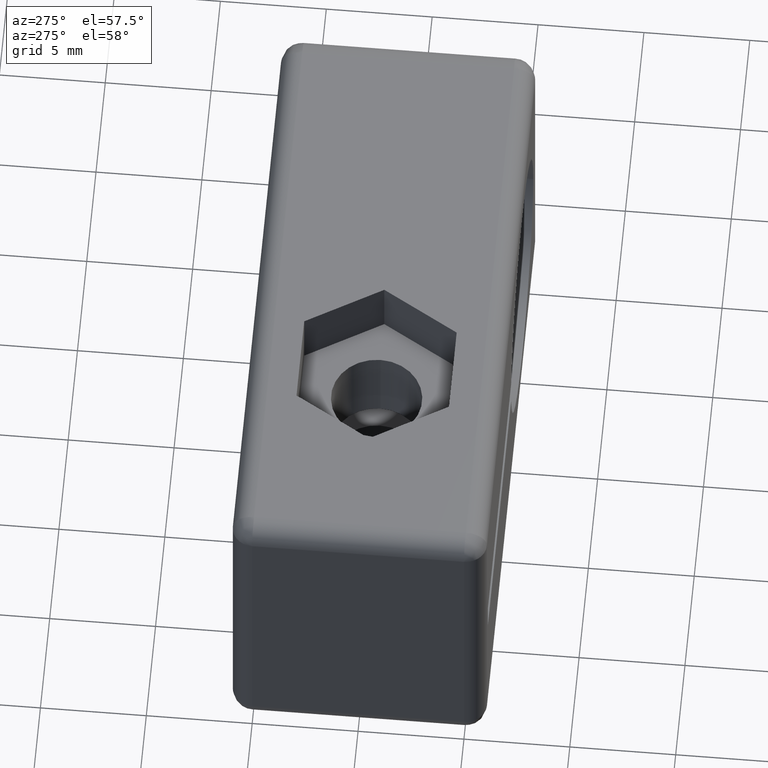
[diagram: clean part render]
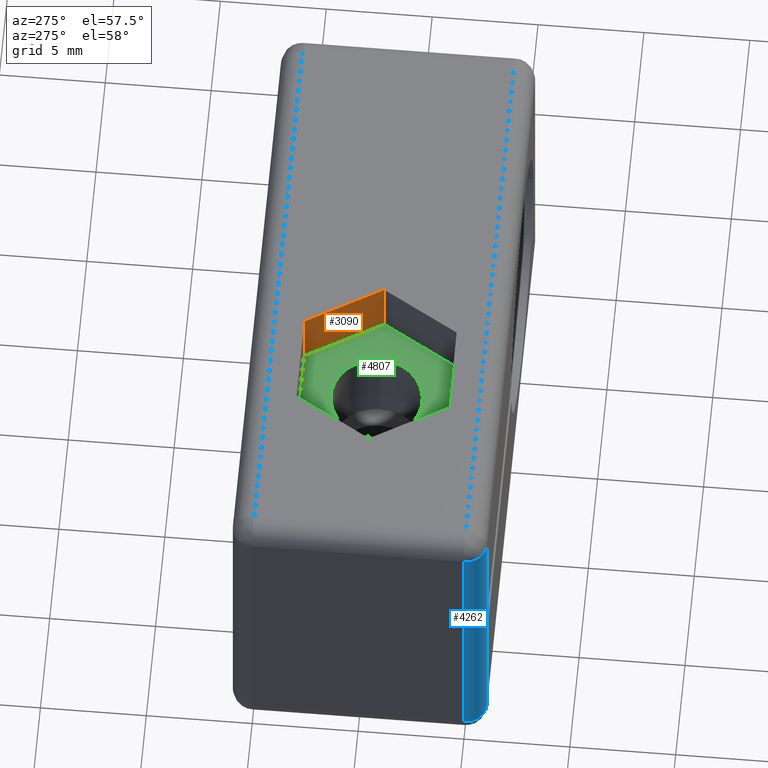
[diagram: same view with three faces highlighted in distinct colors, each labeled with its STEP entity id]
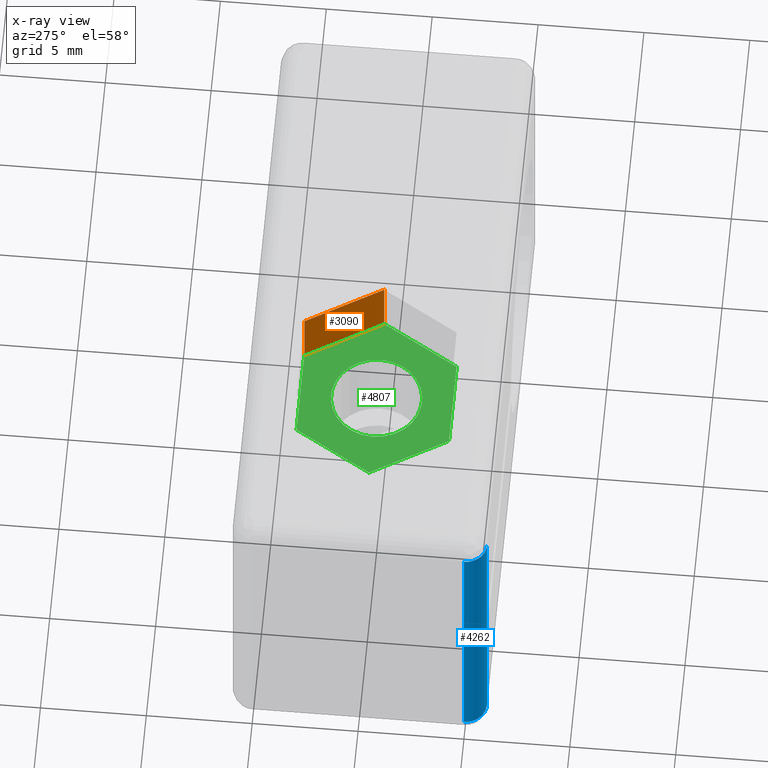
[diagram: x-ray of the same camera — body ghosted, the three highlighted faces saturated]
A machine part, auxiliary view with three faces highlighted in distinct colors.
The next image is the same camera in x-ray (body ghosted, the three faces saturated) — at least one of them is partly hidden behind the body in this view.
Their STEP definitions:

[orange] entity #3090 — the highlighted planar face has unit normal (0.866, 0.5, -0).
#489 = LINE ( 'NONE', #4588, #4095 ) ;
#601 = EDGE_LOOP ( 'NONE', ( #1267, #1251, #1333, #3761 ) ) ;
#623 = CARTESIAN_POINT ( 'NONE',  ( 2.078460969082650800, 3.600000000000001000, 13.00000000000000200 ) ) ;
#689 = VERTEX_POINT ( 'NONE', #870 ) ;
#727 = DIRECTION ( 'NONE',  ( 0.5000000000000013300, -0.8660254037844379300, 0.0000000000000000000 ) ) ;
#733 = DIRECTION ( 'NONE',  ( 0.0000000000000000000, 0.0000000000000000000, 1.000000000000000000 ) ) ;
#870 = CARTESIAN_POINT ( 'NONE',  ( 4.156921938165308600, 8.550872054697259100E-016, 16.00000000000000000 ) ) ;
#965 = VECTOR ( 'NONE', #5458, 1000.000000000000000 ) ;
#1141 = CARTESIAN_POINT ( 'NONE',  ( 4.156921938165310400, -1.002351020987810100E-017, 13.00000000000000200 ) ) ;
#1251 = ORIENTED_EDGE ( 'NONE', *, *, #5398, .T. ) ;
#1267 = ORIENTED_EDGE ( 'NONE', *, *, #4350, .F. ) ;
#1333 = ORIENTED_EDGE ( 'NONE', *, *, #2224, .T. ) ;
#1344 = CARTESIAN_POINT ( 'NONE',  ( 4.156921938165305100, 4.336808689942017700E-015, 13.00000000000000200 ) ) ;
#1378 = VECTOR ( 'NONE', #727, 1000.000000000000000 ) ;
#2025 = DIRECTION ( 'NONE',  ( -0.5000000000000003300, 0.8660254037844383700, 0.0000000000000000000 ) ) ;
#2224 = EDGE_CURVE ( 'NONE', #5410, #689, #4139, .T. ) ;
#3090 = ADVANCED_FACE ( 'NONE', ( #5341 ), #4147, .F. ) ;
#3629 = EDGE_CURVE ( 'NONE', #4847, #689, #5020, .T. ) ;
#3665 = CARTESIAN_POINT ( 'NONE',  ( 2.078460969082649900, 3.600000000000000500, 13.00000000000000200 ) ) ;
#3761 = ORIENTED_EDGE ( 'NONE', *, *, #3629, .F. ) ;
#3813 = LINE ( 'NONE', #3665, #965 ) ;
#3933 = AXIS2_PLACEMENT_3D ( 'NONE', #1141, #5041, #2025 ) ;
#4095 = VECTOR ( 'NONE', #733, 1000.000000000000000 ) ;
#4139 = LINE ( 'NONE', #1344, #4663 ) ;
#4147 = PLANE ( 'NONE',  #3933 ) ;
#4350 = EDGE_CURVE ( 'NONE', #4848, #4847, #489, .T. ) ;
#4511 = CARTESIAN_POINT ( 'NONE',  ( 2.078460969082651700, 3.600000000000001000, 16.00000000000000000 ) ) ;
#4551 = CARTESIAN_POINT ( 'NONE',  ( 4.156921938165308600, 9.162468568136809800E-016, 13.00000000000000200 ) ) ;
#4588 = CARTESIAN_POINT ( 'NONE',  ( 2.078460969082654300, 3.600000000000002300, 13.00000000000000200 ) ) ;
#4663 = VECTOR ( 'NONE', #5131, 1000.000000000000000 ) ;
#4847 = VERTEX_POINT ( 'NONE', #4511 ) ;
#4848 = VERTEX_POINT ( 'NONE', #623 ) ;
#5020 = LINE ( 'NONE', #5404, #1378 ) ;
#5041 = DIRECTION ( 'NONE',  ( 0.8660254037844384900, 0.5000000000000004400, -0.0000000000000000000 ) ) ;
#5131 = DIRECTION ( 'NONE',  ( -0.0000000000000000000, 0.0000000000000000000, 1.000000000000000000 ) ) ;
#5341 = FACE_OUTER_BOUND ( 'NONE', #601, .T. ) ;
#5398 = EDGE_CURVE ( 'NONE', #4848, #5410, #3813, .T. ) ;
#5404 = CARTESIAN_POINT ( 'NONE',  ( 2.078460969082649900, 3.600000000000000500, 16.00000000000000000 ) ) ;
#5410 = VERTEX_POINT ( 'NONE', #4551 ) ;
#5458 = DIRECTION ( 'NONE',  ( 0.5000000000000013300, -0.8660254037844379300, 0.0000000000000000000 ) ) ;

[blue] entity #4262 — the highlighted cylindrical surface (edge-blend (fillet) strip) has radius 1 mm, axis along (0, 0, 1).
#212 = EDGE_CURVE ( 'NONE', #3655, #769, #1256, .T. ) ;
#340 = VECTOR ( 'NONE', #2649, 1000.000000000000000 ) ;
#509 = ORIENTED_EDGE ( 'NONE', *, *, #3663, .F. ) ;
#670 = AXIS2_PLACEMENT_3D ( 'NONE', #5294, #4389, #3993 ) ;
#761 = EDGE_LOOP ( 'NONE', ( #509, #3779, #5161, #4410 ) ) ;
#769 = VERTEX_POINT ( 'NONE', #3458 ) ;
#915 = VERTEX_POINT ( 'NONE', #5297 ) ;
#1005 = CARTESIAN_POINT ( 'NONE',  ( -8.999999999999989300, -6.000000000000000000, 0.0000000000000000000 ) ) ;
#1256 = CIRCLE ( 'NONE', #4334, 0.9999999999999991100 ) ;
#1419 = DIRECTION ( 'NONE',  ( 0.0000000000000000000, 0.0000000000000000000, 1.000000000000000000 ) ) ;
#1815 = CARTESIAN_POINT ( 'NONE',  ( -8.999999999999987600, -6.000000000000000000, 15.00000000001226600 ) ) ;
#1993 = VERTEX_POINT ( 'NONE', #3216 ) ;
#2296 = EDGE_CURVE ( 'NONE', #1993, #915, #5075, .T. ) ;
#2545 = DIRECTION ( 'NONE',  ( -0.0000000000000000000, -0.0000000000000000000, -1.000000000000000000 ) ) ;
#2649 = DIRECTION ( 'NONE',  ( 0.0000000000000000000, -0.0000000000000000000, -1.000000000000000000 ) ) ;
#3088 = EDGE_CURVE ( 'NONE', #769, #1993, #4471, .T. ) ;
#3153 = DIRECTION ( 'NONE',  ( 1.000000000000000000, 0.0000000000000000000, 0.0000000000000000000 ) ) ;
#3216 = CARTESIAN_POINT ( 'NONE',  ( -10.00000000000000200, -4.999999999999998200, 1.000000000000000000 ) ) ;
#3388 = VECTOR ( 'NONE', #4181, 1000.000000000000000 ) ;
#3458 = CARTESIAN_POINT ( 'NONE',  ( -10.00000000000000200, -4.999999999999992000, 15.00000000000000000 ) ) ;
#3584 = DIRECTION ( 'NONE',  ( 1.000000000000000000, 8.673617379884043400E-016, 0.0000000000000000000 ) ) ;
#3603 = FACE_OUTER_BOUND ( 'NONE', #761, .T. ) ;
#3655 = VERTEX_POINT ( 'NONE', #1815 ) ;
#3663 = EDGE_CURVE ( 'NONE', #3655, #915, #5486, .T. ) ;
#3744 = AXIS2_PLACEMENT_3D ( 'NONE', #4452, #1419, #3153 ) ;
#3779 = ORIENTED_EDGE ( 'NONE', *, *, #212, .T. ) ;
#3993 = DIRECTION ( 'NONE',  ( 1.000000000000000000, 0.0000000000000000000, 0.0000000000000000000 ) ) ;
#4181 = DIRECTION ( 'NONE',  ( -0.0000000000000000000, -0.0000000000000000000, -1.000000000000000000 ) ) ;
#4262 = ADVANCED_FACE ( 'NONE', ( #3603 ), #4344, .T. ) ;
#4334 = AXIS2_PLACEMENT_3D ( 'NONE', #5256, #2545, #3584 ) ;
#4344 = CYLINDRICAL_SURFACE ( 'NONE', #3744, 0.9999999999999991100 ) ;
#4389 = DIRECTION ( 'NONE',  ( 0.0000000000000000000, 0.0000000000000000000, 1.000000000000000000 ) ) ;
#4410 = ORIENTED_EDGE ( 'NONE', *, *, #2296, .T. ) ;
#4452 = CARTESIAN_POINT ( 'NONE',  ( -9.000000000000001800, -5.000000000000000000, 0.0000000000000000000 ) ) ;
#4471 = LINE ( 'NONE', #4570, #3388 ) ;
#4570 = CARTESIAN_POINT ( 'NONE',  ( -10.00000000000000000, -4.999999999999990200, 0.0000000000000000000 ) ) ;
#5075 = CIRCLE ( 'NONE', #670, 0.9999999999999991100 ) ;
#5161 = ORIENTED_EDGE ( 'NONE', *, *, #3088, .T. ) ;
#5256 = CARTESIAN_POINT ( 'NONE',  ( -9.000000000000001800, -5.000000000000000000, 15.00000000000000000 ) ) ;
#5294 = CARTESIAN_POINT ( 'NONE',  ( -9.000000000000001800, -5.000000000000000000, 1.000000000000000000 ) ) ;
#5297 = CARTESIAN_POINT ( 'NONE',  ( -8.999999999999989300, -6.000000000000000000, 1.000000000000000000 ) ) ;
#5486 = LINE ( 'NONE', #1005, #340 ) ;

[green] entity #4807 — the highlighted planar face has unit normal (0, 0, -1).
#86 = FACE_BOUND ( 'NONE', #2259, .T. ) ;
#267 = CIRCLE ( 'NONE', #3838, 2.149999999999999900 ) ;
#303 = DIRECTION ( 'NONE',  ( -0.0000000000000000000, -0.0000000000000000000, -1.000000000000000000 ) ) ;
#313 = VERTEX_POINT ( 'NONE', #4944 ) ;
#518 = EDGE_CURVE ( 'NONE', #313, #3452, #5598, .T. ) ;
#623 = CARTESIAN_POINT ( 'NONE',  ( 2.078460969082650800, 3.600000000000001000, 13.00000000000000200 ) ) ;
#692 = FACE_OUTER_BOUND ( 'NONE', #2039, .T. ) ;
#766 = DIRECTION ( 'NONE',  ( -0.0000000000000000000, -0.0000000000000000000, -1.000000000000000000 ) ) ;
#923 = VERTEX_POINT ( 'NONE', #4868 ) ;
#925 = ORIENTED_EDGE ( 'NONE', *, *, #1108, .T. ) ;
#944 = AXIS2_PLACEMENT_3D ( 'NONE', #5009, #4154, #5376 ) ;
#965 = VECTOR ( 'NONE', #5458, 1000.000000000000000 ) ;
#1092 = PLANE ( 'NONE',  #944 ) ;
#1108 = EDGE_CURVE ( 'NONE', #3452, #313, #267, .T. ) ;
#1185 = CARTESIAN_POINT ( 'NONE',  ( -2.149999999999999900, 2.632990618166809200E-016, 13.00000000000000200 ) ) ;
#1207 = ORIENTED_EDGE ( 'NONE', *, *, #1288, .F. ) ;
#1236 = LINE ( 'NONE', #3684, #5558 ) ;
#1288 = EDGE_CURVE ( 'NONE', #5460, #4848, #4264, .T. ) ;
#1326 = EDGE_CURVE ( 'NONE', #1933, #5037, #1965, .T. ) ;
#1334 = AXIS2_PLACEMENT_3D ( 'NONE', #3786, #766, #5057 ) ;
#1574 = LINE ( 'NONE', #2717, #3056 ) ;
#1850 = ORIENTED_EDGE ( 'NONE', *, *, #518, .T. ) ;
#1933 = VERTEX_POINT ( 'NONE', #3580 ) ;
#1944 = ORIENTED_EDGE ( 'NONE', *, *, #3130, .F. ) ;
#1952 = ORIENTED_EDGE ( 'NONE', *, *, #2013, .F. ) ;
#1965 = LINE ( 'NONE', #4060, #4194 ) ;
#1988 = CARTESIAN_POINT ( 'NONE',  ( -4.156921938165310400, -1.084202172485500000E-016, 13.00000000000000200 ) ) ;
#2013 = EDGE_CURVE ( 'NONE', #5410, #1933, #1236, .T. ) ;
#2039 = EDGE_LOOP ( 'NONE', ( #3292, #1952, #5582, #1207, #1944, #4897 ) ) ;
#2157 = DIRECTION ( 'NONE',  ( 1.000000000000000000, -0.0000000000000000000, 0.0000000000000000000 ) ) ;
#2259 = EDGE_LOOP ( 'NONE', ( #1850, #925 ) ) ;
#2291 = DIRECTION ( 'NONE',  ( -0.5000000000000013300, 0.8660254037844379300, 0.0000000000000000000 ) ) ;
#2717 = CARTESIAN_POINT ( 'NONE',  ( -2.078460969082649900, -3.600000000000000500, 13.00000000000000200 ) ) ;
#3056 = VECTOR ( 'NONE', #2291, 1000.000000000000000 ) ;
#3130 = EDGE_CURVE ( 'NONE', #923, #5460, #5213, .T. ) ;
#3292 = ORIENTED_EDGE ( 'NONE', *, *, #1326, .F. ) ;
#3408 = CARTESIAN_POINT ( 'NONE',  ( -2.078460969082650800, -3.600000000000001000, 13.00000000000000200 ) ) ;
#3414 = CARTESIAN_POINT ( 'NONE',  ( -4.156921938165310400, 3.600000000000000500, 13.00000000000000200 ) ) ;
#3452 = VERTEX_POINT ( 'NONE', #1185 ) ;
#3580 = CARTESIAN_POINT ( 'NONE',  ( 2.078460969082649900, -3.600000000000000100, 13.00000000000000200 ) ) ;
#3665 = CARTESIAN_POINT ( 'NONE',  ( 2.078460969082649900, 3.600000000000000500, 13.00000000000000200 ) ) ;
#3684 = CARTESIAN_POINT ( 'NONE',  ( 4.156921938165310400, -1.002351020987810100E-017, 13.00000000000000200 ) ) ;
#3690 = CARTESIAN_POINT ( 'NONE',  ( -2.078460969082649900, 3.600000000000000100, 13.00000000000000200 ) ) ;
#3727 = DIRECTION ( 'NONE',  ( 0.5000000000000013300, 0.8660254037844379300, 0.0000000000000000000 ) ) ;
#3742 = CARTESIAN_POINT ( 'NONE',  ( 0.0000000000000000000, 0.0000000000000000000, 13.00000000000000200 ) ) ;
#3786 = CARTESIAN_POINT ( 'NONE',  ( 0.0000000000000000000, 0.0000000000000000000, 13.00000000000000200 ) ) ;
#3813 = LINE ( 'NONE', #3665, #965 ) ;
#3838 = AXIS2_PLACEMENT_3D ( 'NONE', #3742, #303, #5507 ) ;
#3939 = VECTOR ( 'NONE', #3727, 1000.000000000000000 ) ;
#4060 = CARTESIAN_POINT ( 'NONE',  ( -4.156921938165310400, -3.600000000000000500, 13.00000000000000200 ) ) ;
#4154 = DIRECTION ( 'NONE',  ( 0.0000000000000000000, 0.0000000000000000000, -1.000000000000000000 ) ) ;
#4194 = VECTOR ( 'NONE', #4843, 1000.000000000000000 ) ;
#4264 = LINE ( 'NONE', #3414, #5472 ) ;
#4273 = EDGE_CURVE ( 'NONE', #5037, #923, #1574, .T. ) ;
#4551 = CARTESIAN_POINT ( 'NONE',  ( 4.156921938165308600, 9.162468568136809800E-016, 13.00000000000000200 ) ) ;
#4807 = ADVANCED_FACE ( 'NONE', ( #86, #692 ), #1092, .F. ) ;
#4843 = DIRECTION ( 'NONE',  ( -1.000000000000000000, 0.0000000000000000000, -0.0000000000000000000 ) ) ;
#4848 = VERTEX_POINT ( 'NONE', #623 ) ;
#4868 = CARTESIAN_POINT ( 'NONE',  ( -4.156921938165306900, -1.650188174216917100E-015, 13.00000000000000200 ) ) ;
#4897 = ORIENTED_EDGE ( 'NONE', *, *, #4273, .F. ) ;
#4944 = CARTESIAN_POINT ( 'NONE',  ( 2.149999999999999900, 0.0000000000000000000, 13.00000000000000200 ) ) ;
#5009 = CARTESIAN_POINT ( 'NONE',  ( -4.156921938165310400, 0.0000000000000000000, 13.00000000000000200 ) ) ;
#5037 = VERTEX_POINT ( 'NONE', #3408 ) ;
#5057 = DIRECTION ( 'NONE',  ( 1.000000000000000000, 0.0000000000000000000, 0.0000000000000000000 ) ) ;
#5213 = LINE ( 'NONE', #1988, #3939 ) ;
#5376 = DIRECTION ( 'NONE',  ( -1.000000000000000000, 0.0000000000000000000, -0.0000000000000000000 ) ) ;
#5398 = EDGE_CURVE ( 'NONE', #4848, #5410, #3813, .T. ) ;
#5410 = VERTEX_POINT ( 'NONE', #4551 ) ;
#5454 = DIRECTION ( 'NONE',  ( -0.5000000000000013300, -0.8660254037844379300, 0.0000000000000000000 ) ) ;
#5458 = DIRECTION ( 'NONE',  ( 0.5000000000000013300, -0.8660254037844379300, 0.0000000000000000000 ) ) ;
#5460 = VERTEX_POINT ( 'NONE', #3690 ) ;
#5472 = VECTOR ( 'NONE', #2157, 1000.000000000000000 ) ;
#5507 = DIRECTION ( 'NONE',  ( 1.000000000000000000, 0.0000000000000000000, 0.0000000000000000000 ) ) ;
#5558 = VECTOR ( 'NONE', #5454, 1000.000000000000000 ) ;
#5582 = ORIENTED_EDGE ( 'NONE', *, *, #5398, .F. ) ;
#5598 = CIRCLE ( 'NONE', #1334, 2.149999999999999900 ) ;